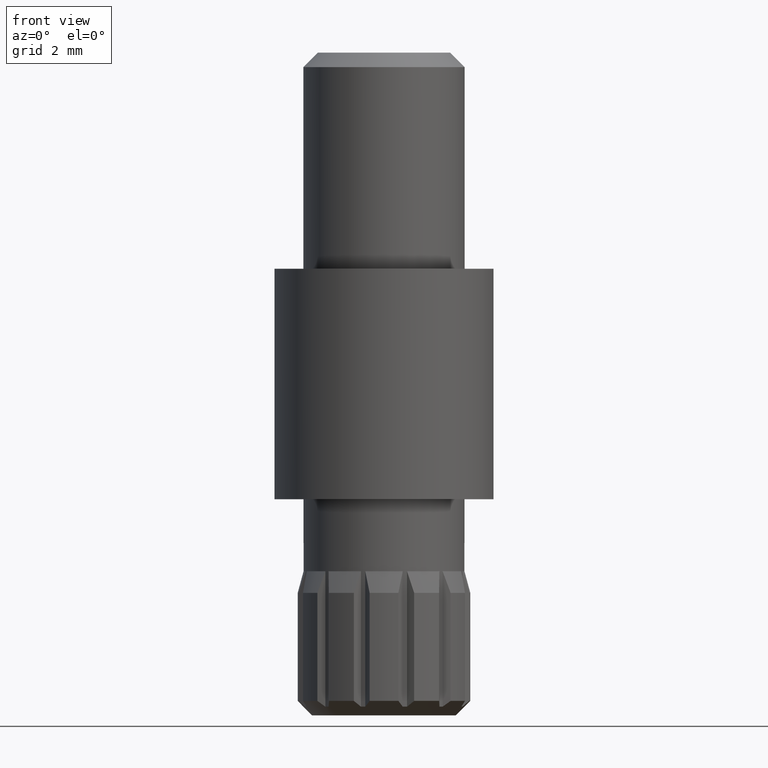
[diagram: clean part render]
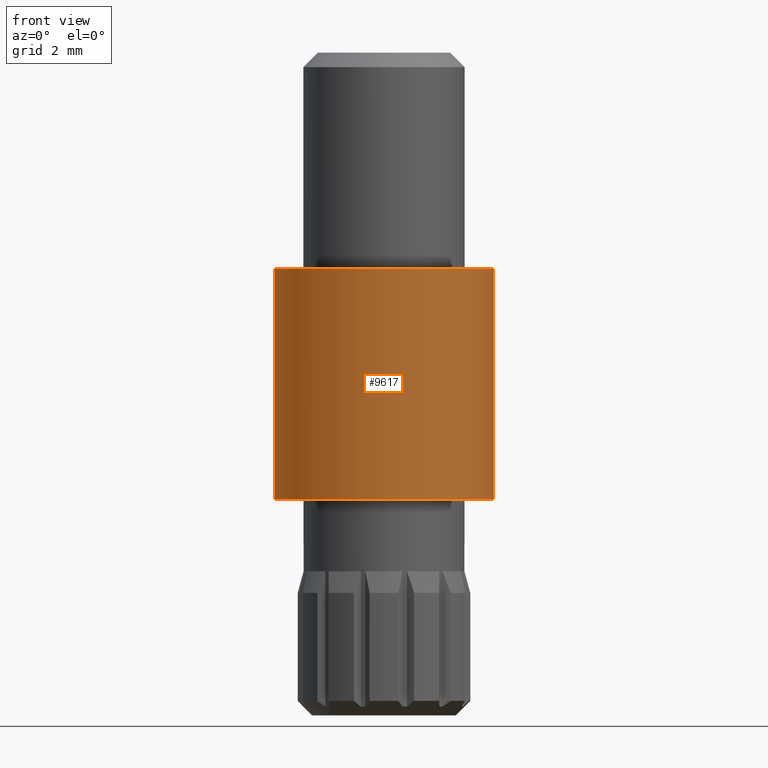
[diagram: same view with one face highlighted and labeled with its STEP entity id]
A machine part, front view. The second image highlights one B-rep face of the part: STEP entity #9617.
In plain terms, the highlighted cylindrical surface (bore or boss wall) has radius 3.8 mm, axis along (-0, -0, -1).
Its self-contained STEP definition (entity closure, byte-faithful):
#355 = CIRCLE ( 'NONE', #7795, 3.799999999999999822 ) ;
#997 = DIRECTION ( 'NONE',  ( -1.000000000000000000, 0.000000000000000000, 0.000000000000000000 ) ) ;
#1040 = CARTESIAN_POINT ( 'NONE',  ( 3.799999999999999822, 0.000000000000000000, 0.000000000000000000 ) ) ;
#1143 = ORIENTED_EDGE ( 'NONE', *, *, #10633, .F. ) ;
#3553 = FACE_OUTER_BOUND ( 'NONE', #6709, .T. ) ;
#3789 = EDGE_LOOP ( 'NONE', ( #1143 ) ) ;
#4655 = CYLINDRICAL_SURFACE ( 'NONE', #13107, 3.799999999999999822 ) ;
#6709 = EDGE_LOOP ( 'NONE', ( #12250 ) ) ;
#7070 = CARTESIAN_POINT ( 'NONE',  ( 3.799999999999999822, 0.000000000000000000, 8.000000000000000000 ) ) ;
#7514 = DIRECTION ( 'NONE',  ( 0.000000000000000000, 0.000000000000000000, 1.000000000000000000 ) ) ;
#7646 = DIRECTION ( 'NONE',  ( 0.000000000000000000, 0.000000000000000000, 1.000000000000000000 ) ) ;
#7755 = CIRCLE ( 'NONE', #10944, 3.799999999999999822 ) ;
#7795 = AXIS2_PLACEMENT_3D ( 'NONE', #9764, #7646, #10689 ) ;
#8445 = CARTESIAN_POINT ( 'NONE',  ( 0.000000000000000000, 0.000000000000000000, 0.000000000000000000 ) ) ;
#9082 = CARTESIAN_POINT ( 'NONE',  ( 0.000000000000000000, 0.000000000000000000, 8.000000000000000000 ) ) ;
#9617 = ADVANCED_FACE ( 'NONE', ( #11271, #3553 ), #4655, .T. ) ;
#9764 = CARTESIAN_POINT ( 'NONE',  ( 0.000000000000000000, 0.000000000000000000, 8.000000000000000000 ) ) ;
#10633 = EDGE_CURVE ( 'NONE', #12360, #12360, #355, .T. ) ;
#10689 = DIRECTION ( 'NONE',  ( 1.000000000000000000, 0.000000000000000000, 0.000000000000000000 ) ) ;
#10944 = AXIS2_PLACEMENT_3D ( 'NONE', #8445, #7514, #11458 ) ;
#11249 = VERTEX_POINT ( 'NONE', #1040 ) ;
#11271 = FACE_OUTER_BOUND ( 'NONE', #3789, .T. ) ;
#11458 = DIRECTION ( 'NONE',  ( 1.000000000000000000, 0.000000000000000000, 0.000000000000000000 ) ) ;
#12201 = DIRECTION ( 'NONE',  ( -0.000000000000000000, -0.000000000000000000, -1.000000000000000000 ) ) ;
#12250 = ORIENTED_EDGE ( 'NONE', *, *, #12454, .T. ) ;
#12360 = VERTEX_POINT ( 'NONE', #7070 ) ;
#12454 = EDGE_CURVE ( 'NONE', #11249, #11249, #7755, .T. ) ;
#13107 = AXIS2_PLACEMENT_3D ( 'NONE', #9082, #12201, #997 ) ;